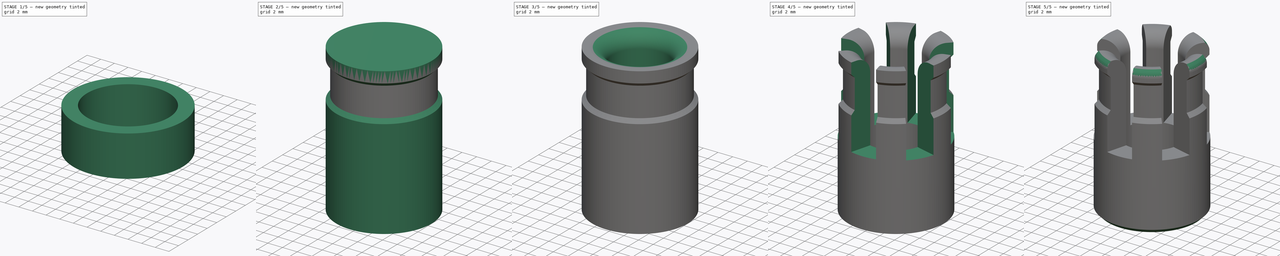
[diagram: build sequence overview — one tinted view per stage of 5, left to right]
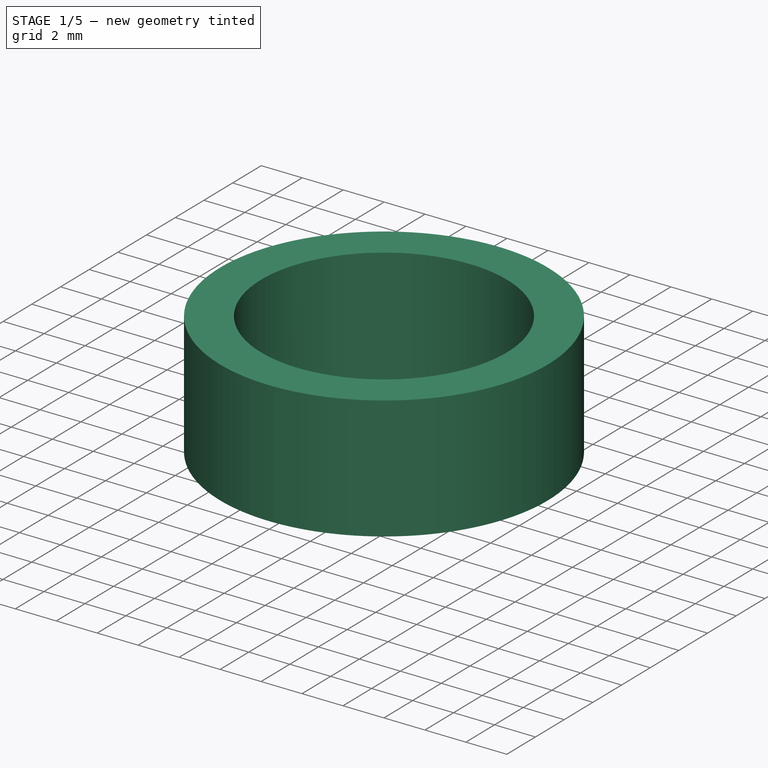
[diagram: stage 1 of 5 — iso view after this stage's code; geometry added in this stage tinted green]
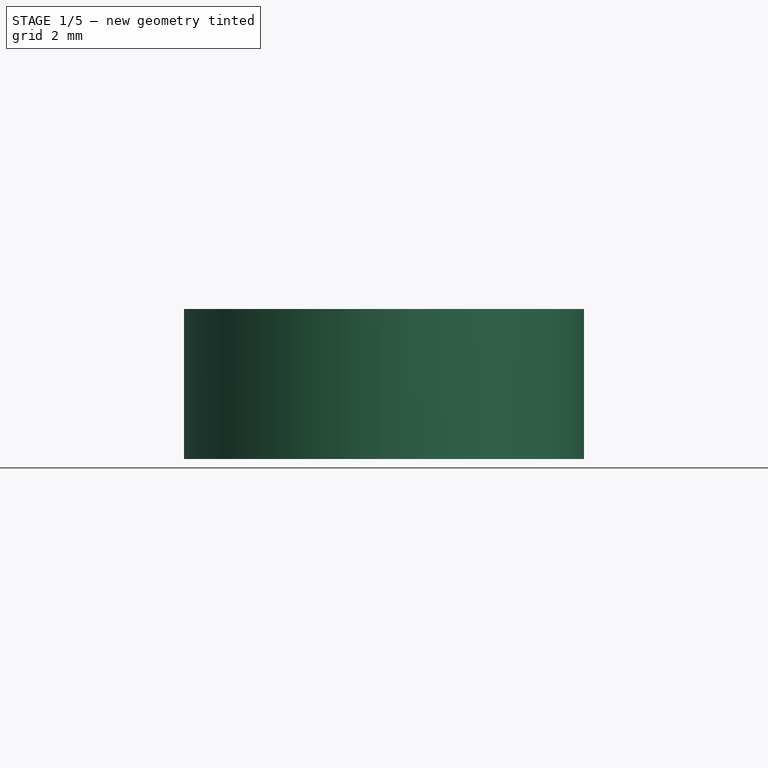
[diagram: stage 1 of 5 — front view after this stage's code; geometry added in this stage tinted green]
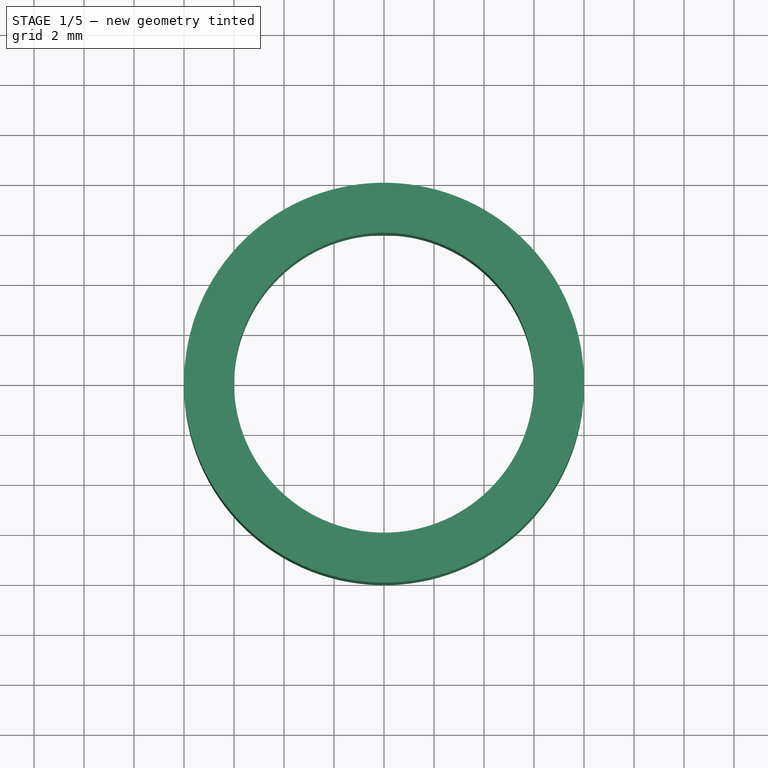
[diagram: stage 1 of 5 — top view after this stage's code; geometry added in this stage tinted green]
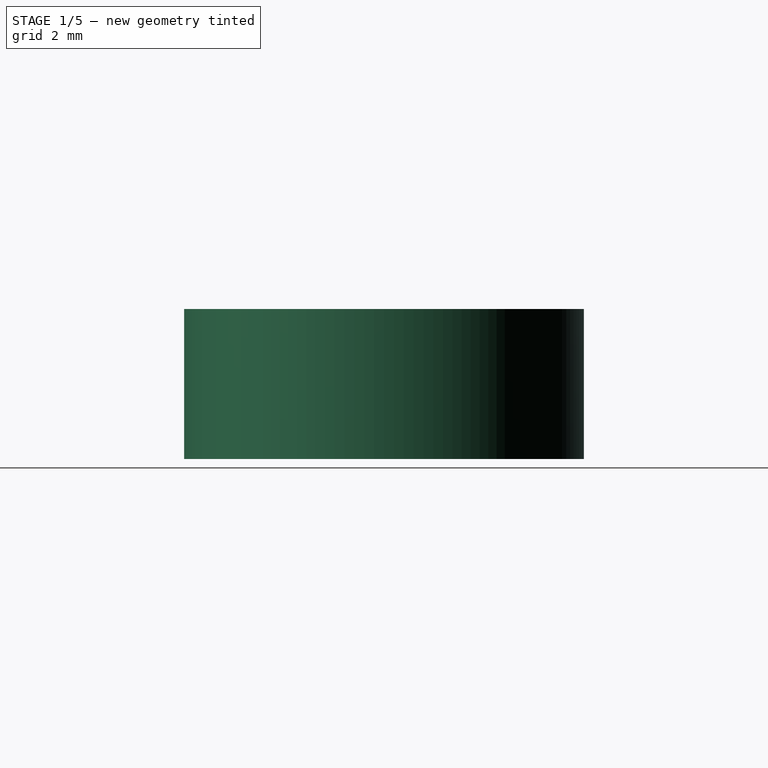
[diagram: stage 1 of 5 — right view after this stage's code; geometry added in this stage tinted green]
FCSTD DOCUMENT  (FreeCAD 0.16R6712 (Git))
Label: pasacables
License: All rights reserved
LicenseURL: http://en.wikipedia.org/wiki/All_rights_reserved
objects: Part::Cylinder×4, PartDesign::Chamfer×4, Part::Cut×3, PartDesign::Fillet×3, Sketcher::SketchObject×1, PartDesign::Pocket×1, PartDesign::PolarPattern×1
note: 18 computed .brp shape members not serialized (recipe doc carries the construction recipe); baked Part::Feature solids carry a one-line shape summary decoded from their .brp

FEATURE [Part::Cylinder] Cylinder002  label="Cilindro002"
  Angle = 360
  Height = 6
  Radius = 6
FEATURE [Part::Cylinder] Cylinder003  label="Cilindro003"
  Angle = 360
  Height = 6
  Radius = 8
FEATURE [Part::Cut] Cut
  Base = -> Cylinder003
  Placement = pos=(0,0,13) rot=(0,0,1;0rad)
  Tool = -> Cylinder002
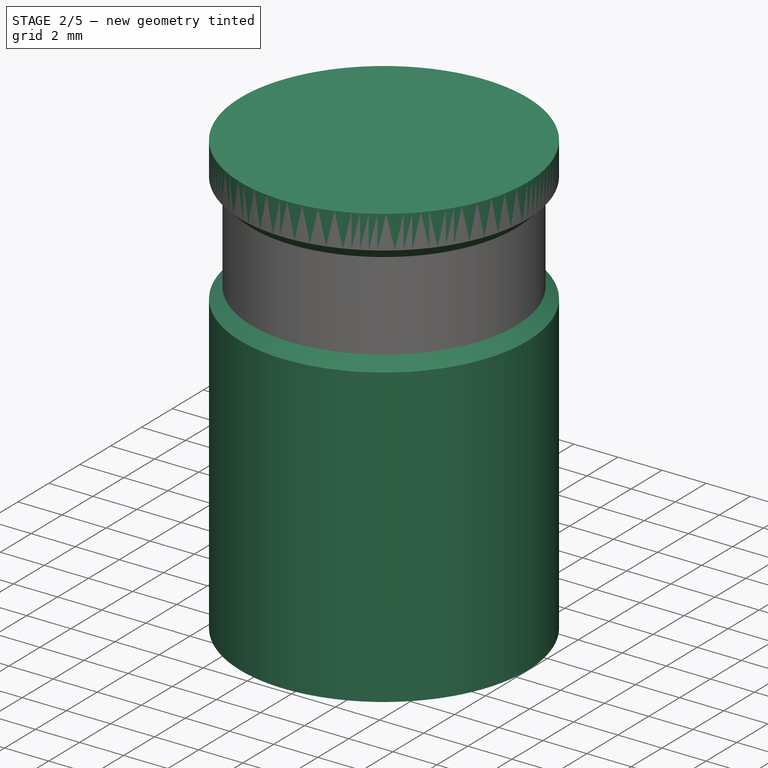
[diagram: stage 2 of 5 — iso view after this stage's code; geometry added in this stage tinted green]
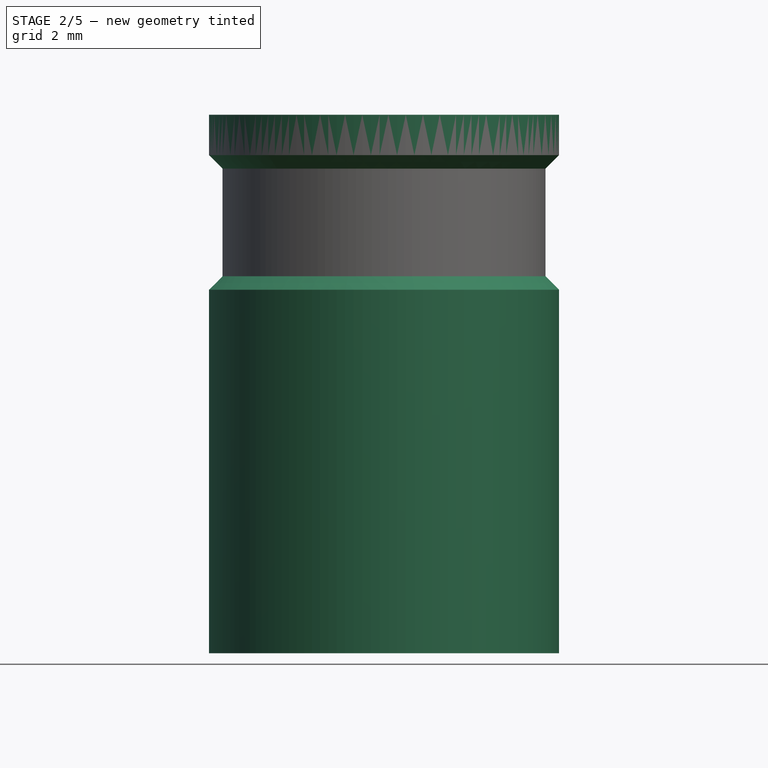
[diagram: stage 2 of 5 — front view after this stage's code; geometry added in this stage tinted green]
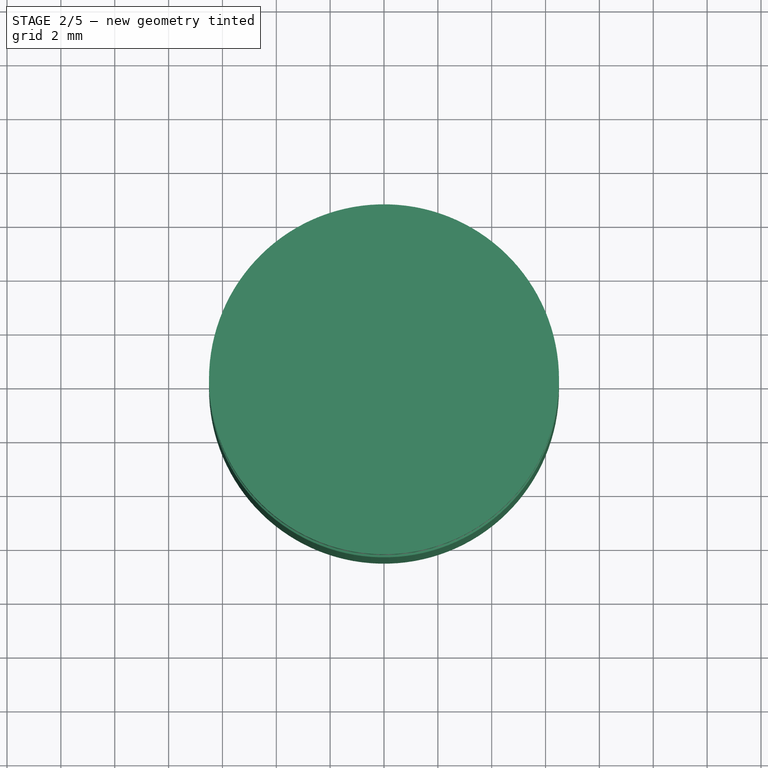
[diagram: stage 2 of 5 — top view after this stage's code; geometry added in this stage tinted green]
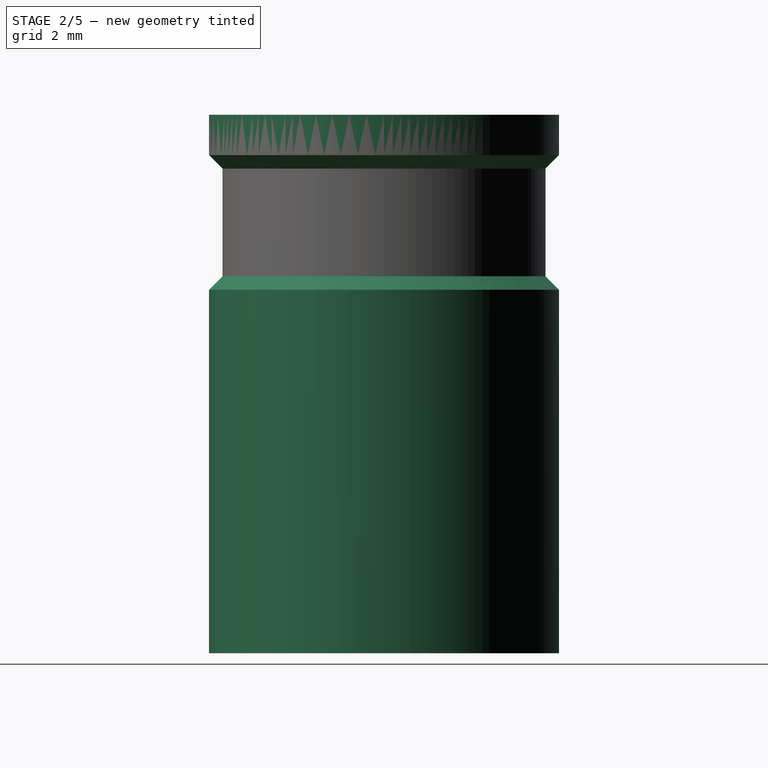
[diagram: stage 2 of 5 — right view after this stage's code; geometry added in this stage tinted green]
FEATURE [Part::Cylinder] Cylinder  label="Cilindro"
  Angle = 360
  Height = 20
  Radius = 6.5
FEATURE [PartDesign::Chamfer] Chamfer
  Base = -> Cut [Edge4,Edge5]
  Placement = pos=(0,0,13) rot=(0,0,1;0rad)
  Size = 1
FEATURE [Part::Cut] Cut001
  Base = -> Cylinder
  Tool = -> Chamfer
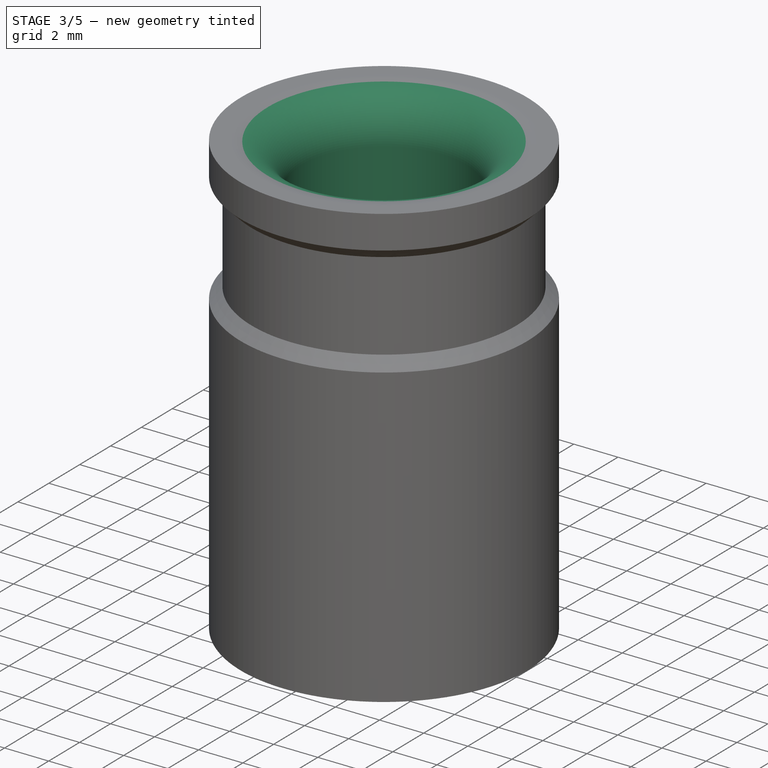
[diagram: stage 3 of 5 — iso view after this stage's code; geometry added in this stage tinted green]
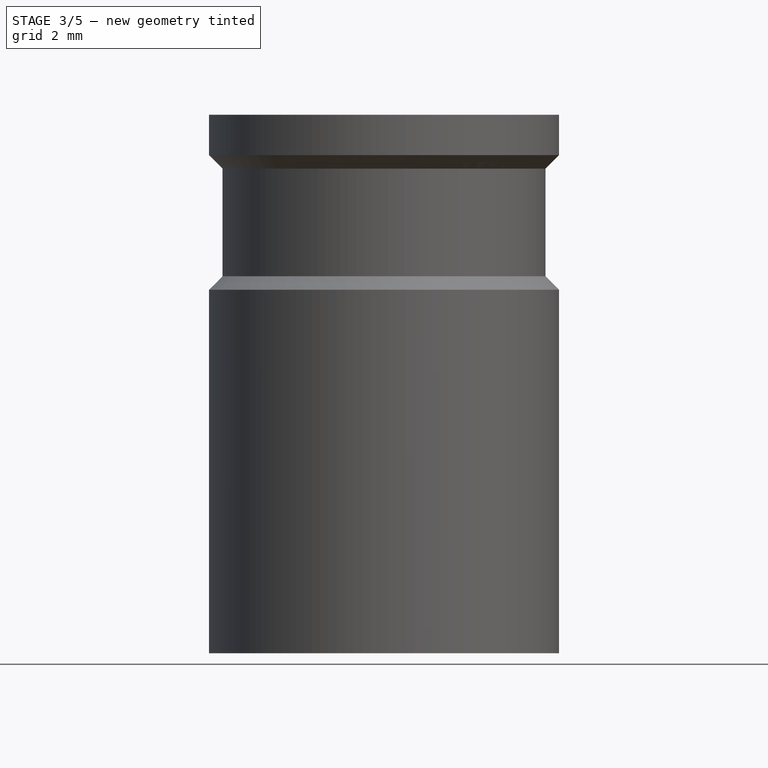
[diagram: stage 3 of 5 — front view after this stage's code; geometry added in this stage tinted green]
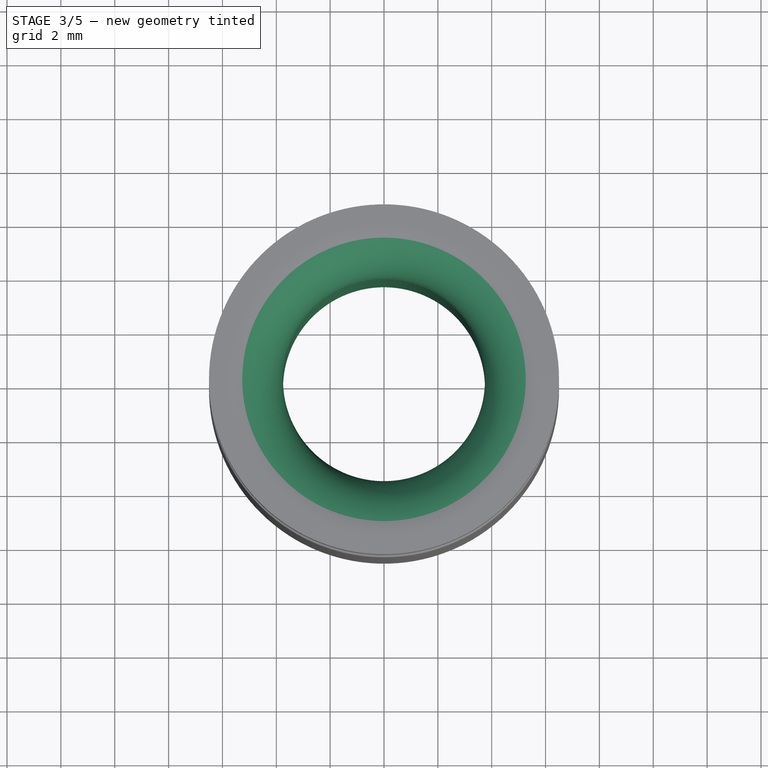
[diagram: stage 3 of 5 — top view after this stage's code; geometry added in this stage tinted green]
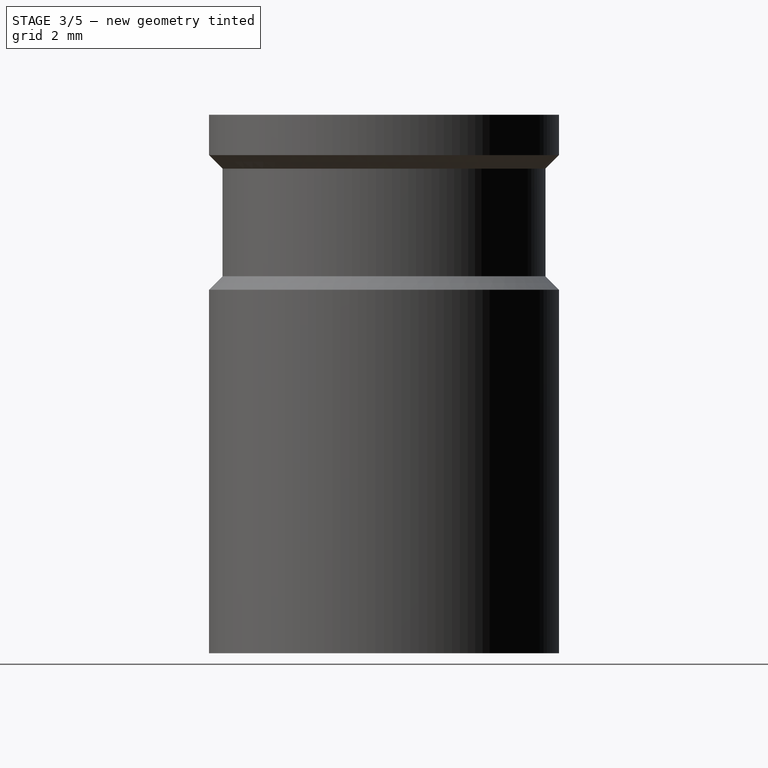
[diagram: stage 3 of 5 — right view after this stage's code; geometry added in this stage tinted green]
FEATURE [Part::Cylinder] Cylinder001  label="Cilindro001"
  Angle = 360
  Height = 30
  Radius = 3.75
FEATURE [Part::Cut] Cut002
  Base = -> Cut001
  Tool = -> Cylinder001
FEATURE [PartDesign::Fillet] Fillet
  Base = -> Cut002 [Edge6]
  Radius = 2
FEATURE [PartDesign::Chamfer] Chamfer001
  Base = -> Fillet [Edge8]
  Size = 1
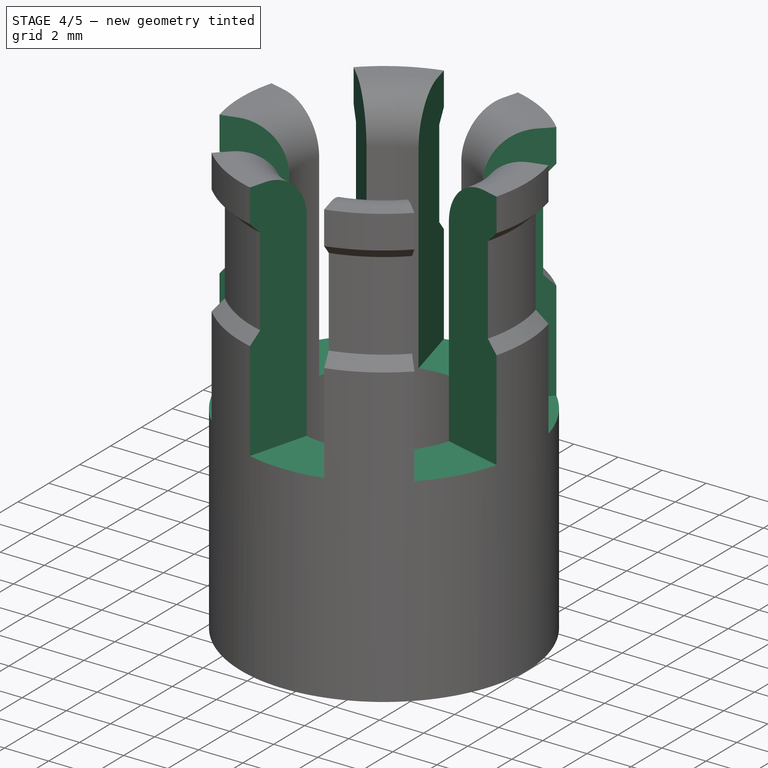
[diagram: stage 4 of 5 — iso view after this stage's code; geometry added in this stage tinted green]
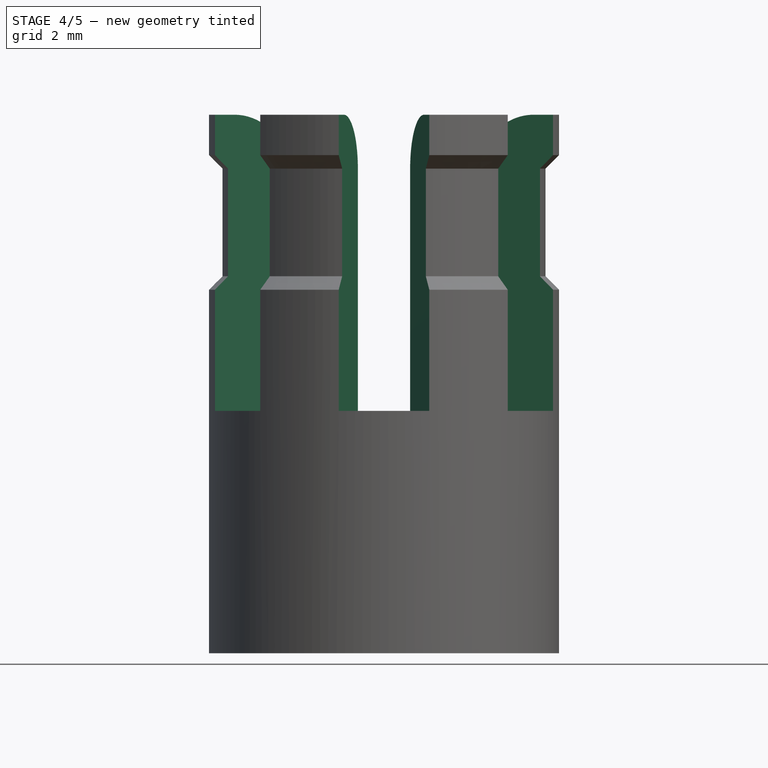
[diagram: stage 4 of 5 — front view after this stage's code; geometry added in this stage tinted green]
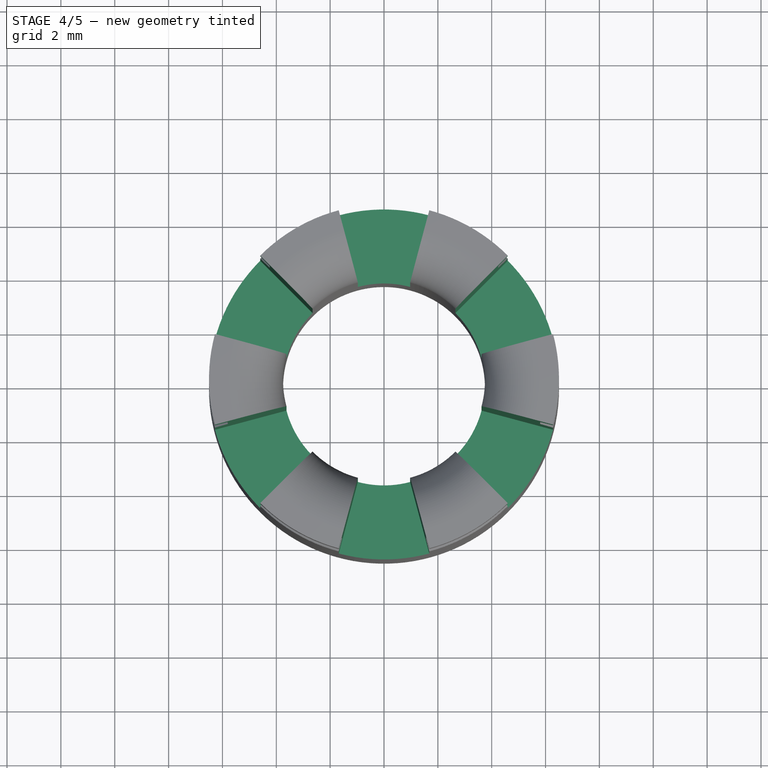
[diagram: stage 4 of 5 — top view after this stage's code; geometry added in this stage tinted green]
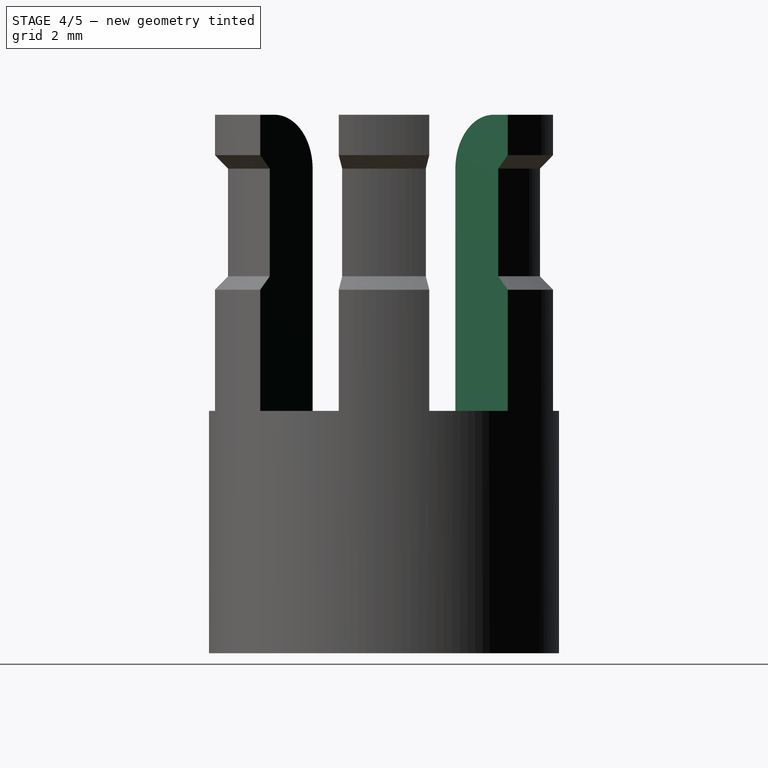
[diagram: stage 4 of 5 — right view after this stage's code; geometry added in this stage tinted green]
FEATURE [PartDesign::Fillet] Fillet001
  Base = -> Chamfer001 [Edge2]
  Radius = 1
FEATURE [Sketcher::SketchObject] Sketch
  Placement = pos=(0,0,20) rot=(0,0,1;0rad)
  Support = -> Fillet001 [Face5]
  sketch-geometry (3):
    g0: LineSegment StartX=0 StartY=0 StartZ=0 EndX=-1.81173 EndY=6.76148 EndZ=0
    g1: LineSegment StartX=-1.81173 StartY=6.76148 StartZ=0 EndX=1.81173 EndY=6.76148 EndZ=0
    g2: LineSegment StartX=1.81173 StartY=6.76148 StartZ=0 EndX=0 EndY=0 EndZ=0
  constraints (8):
    c: Coincident(g-1,g0)
    c: Coincident(g0,g1)
    c: Horizontal(g1)
    c: Coincident(g1,g2)
    c: Coincident(g2,g0)
    c: Symmetric(g0,g1,g-2)
    c: Angle(g2,g0) = 0.523599
    c: Distance(g2) = 7
FEATURE [PartDesign::Pocket] Pocket
  Length = 11
  Sketch = -> Sketch
  Type = 0
FEATURE [PartDesign::PolarPattern] PolarPattern
  Angle = 360
  Axis = -> Sketch [N_Axis]
  Occurrences = 6
  Originals = -> [Pocket]
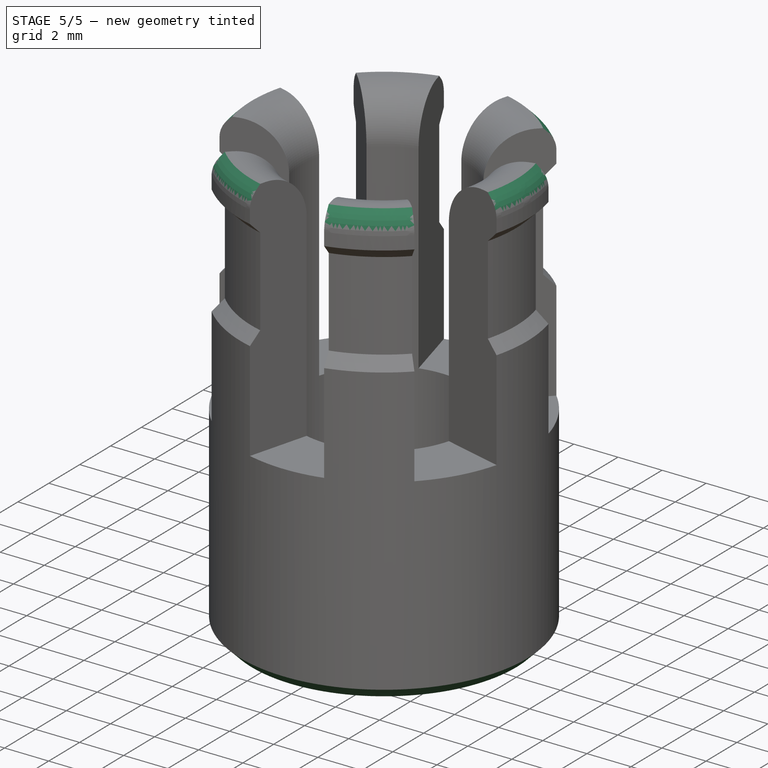
[diagram: stage 5 of 5 — iso view after this stage's code; geometry added in this stage tinted green]
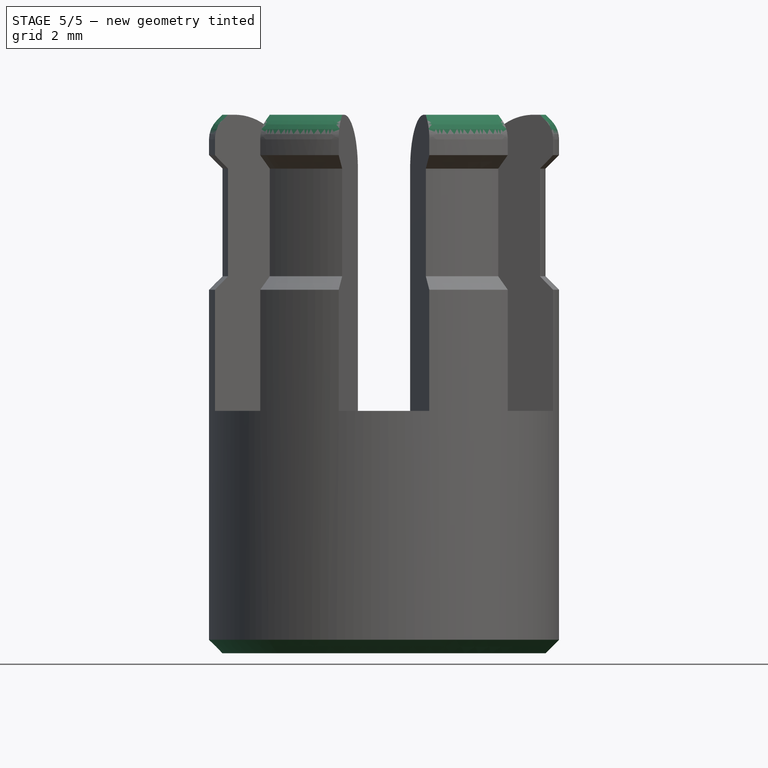
[diagram: stage 5 of 5 — front view after this stage's code; geometry added in this stage tinted green]
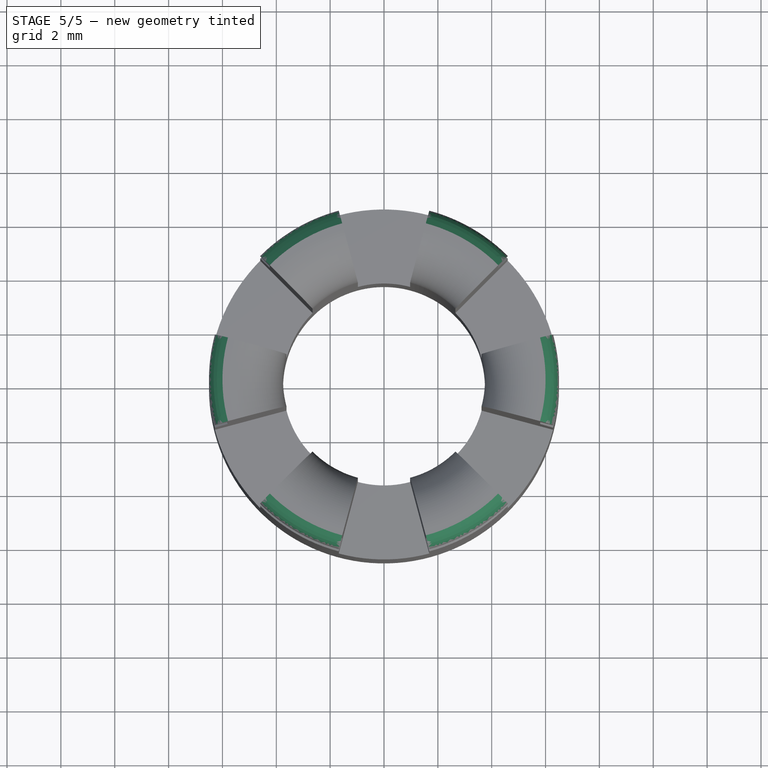
[diagram: stage 5 of 5 — top view after this stage's code; geometry added in this stage tinted green]
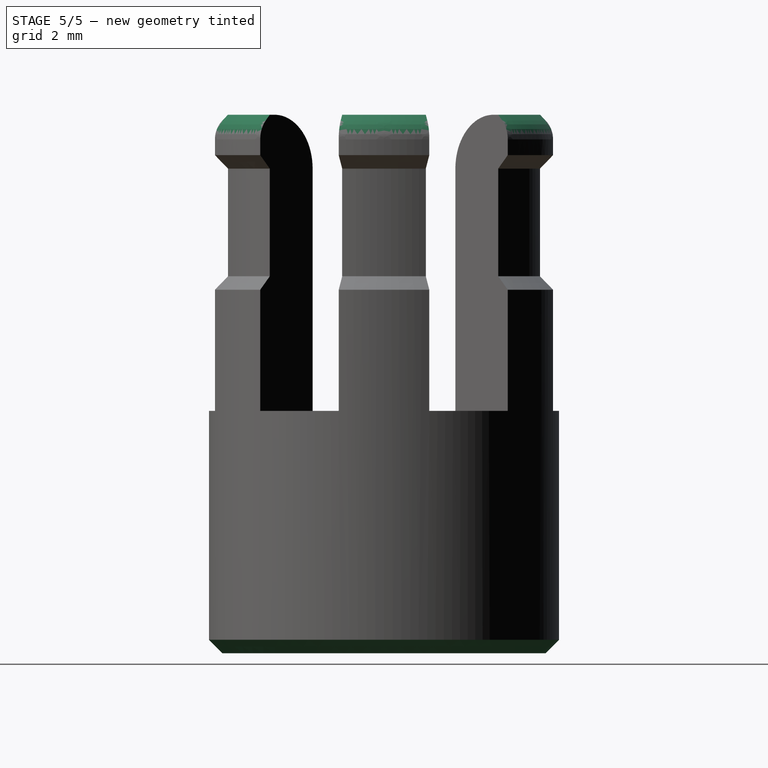
[diagram: stage 5 of 5 — right view after this stage's code; geometry added in this stage tinted green]
FEATURE [PartDesign::Chamfer] Chamfer002
  Base = -> PolarPattern [Edge175,Edge171,Edge140,Edge141,Edge159,Edge163,Edge167]
  Size = 0.5
FEATURE [PartDesign::Fillet] Fillet002
  Base = -> Chamfer002 [Edge17,Edge21,Edge197,Edge193,Edge181,Edge185,Edge189]
  Radius = 1
FEATURE [PartDesign::Chamfer] Chamfer003
  Base = -> Fillet002 [Edge62]
  Size = 0.5
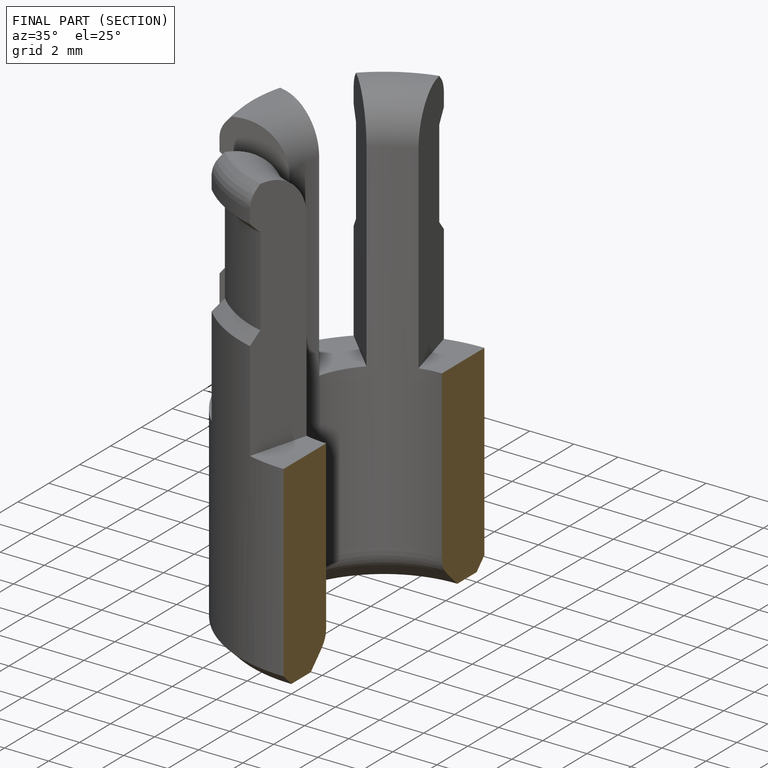
[diagram: finished part — half-section view (interior)]
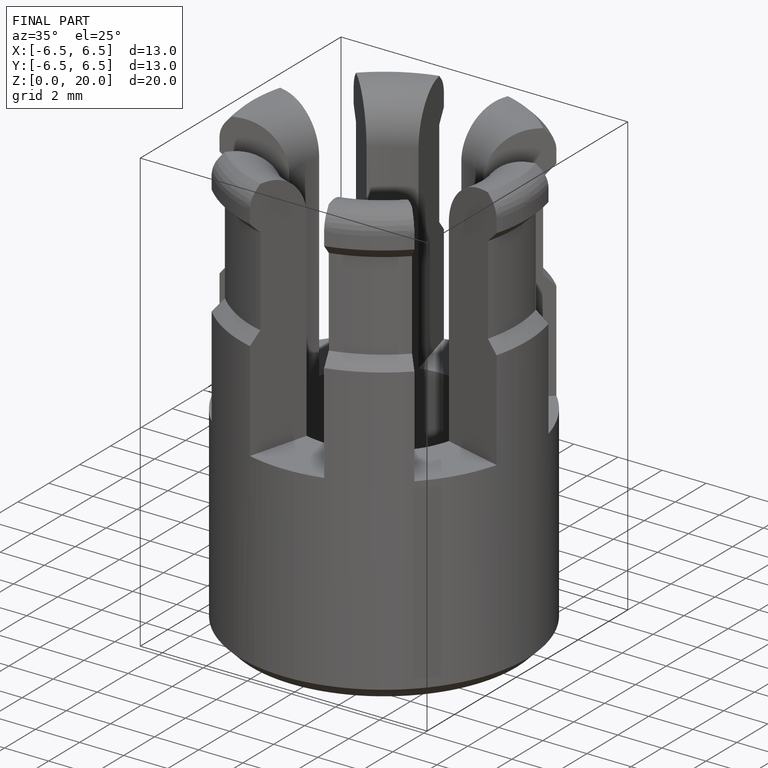
[diagram: finished part — iso view with bounding-box wireframe]
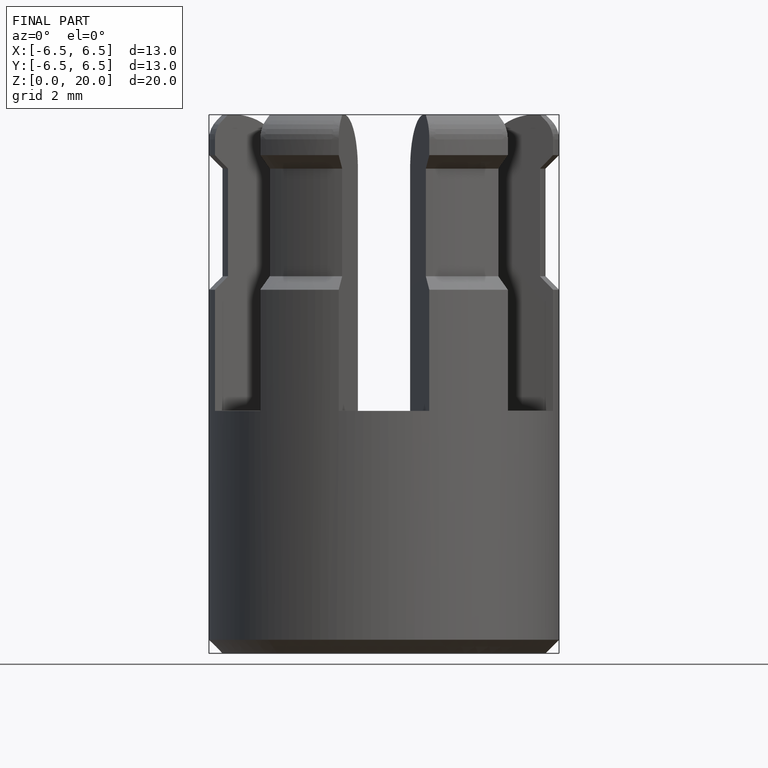
[diagram: finished part — front view with bounding-box wireframe]
